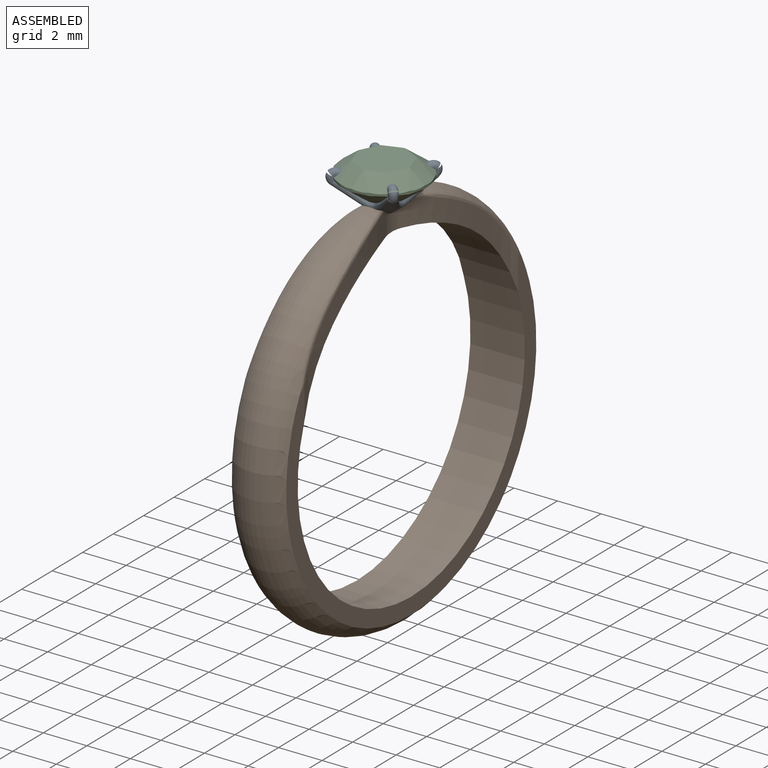
[diagram: assembled view]
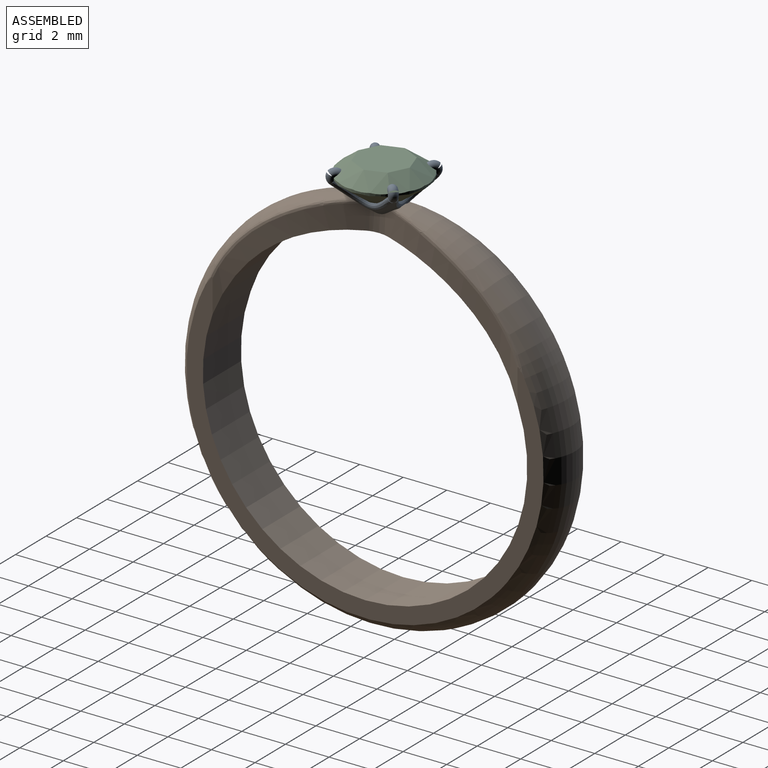
[diagram: assembled view, second angle]
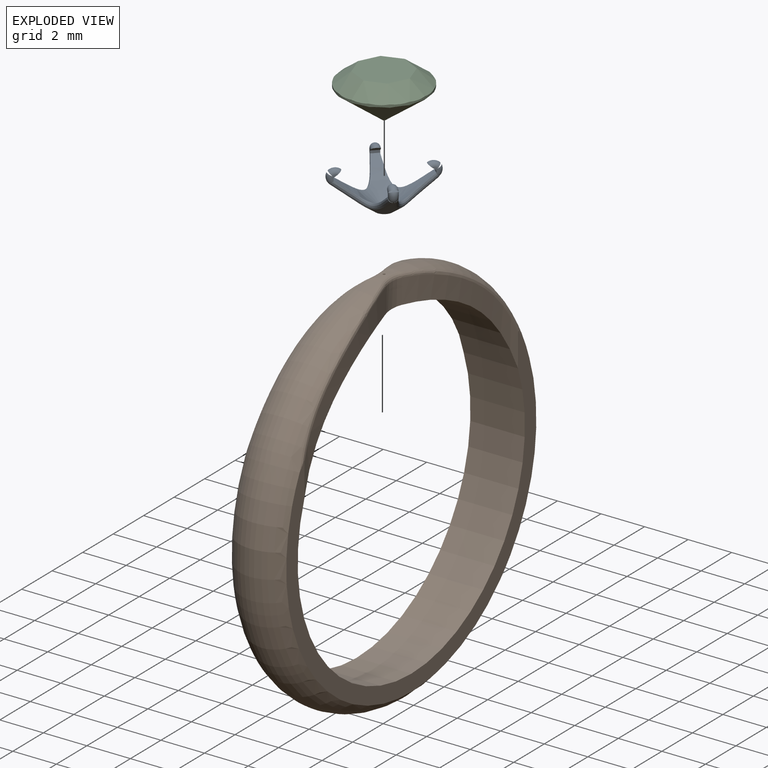
[diagram: exploded view]
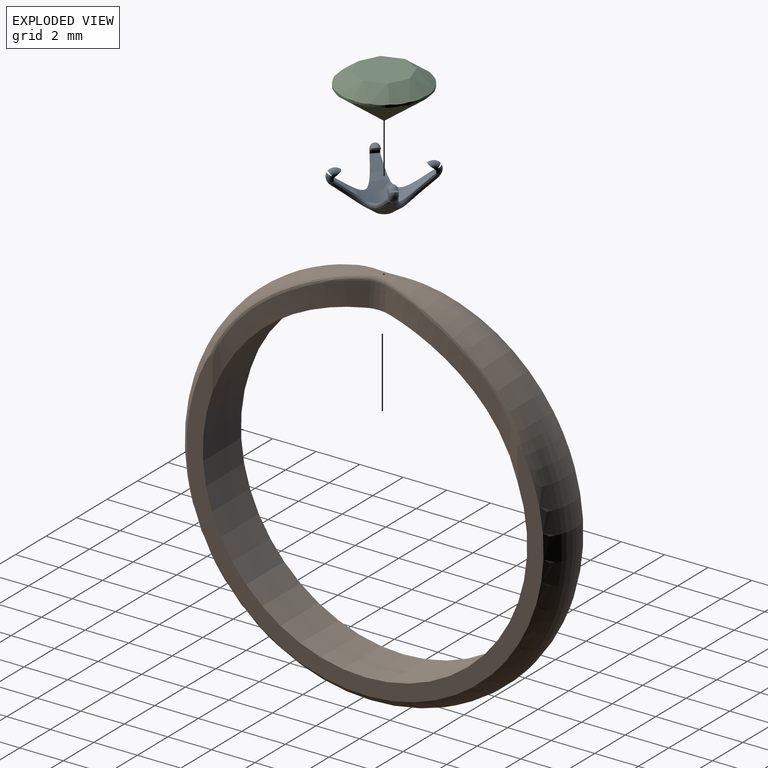
[diagram: exploded view, second angle]
ASSEMBLY  parts=3 mates=2
PART A: 104 faces, bbox 15.4x15.3x12.2 mm
  f0: cone r=1.96mm half-angle=36.5deg, axis (0,0,-1), area 0mm2, adj f8,f11,f72,f74,f98,f101
  f1: bspline ~6.14x6.13mm, area 0.1mm2, adj f7,f64,f101
  f2: bspline ~4.9x4.15mm, area 0mm2, adj f3,f10,f100
  f3: plane 0.04x0.03mm, normal (-0.44,-0.44,-0.78), area 0mm2, adj f2,f4,f10,f96
  f4: plane 0.27x0.22mm, normal (0,1,0), area 0mm2, adj f3,f9,f10,f47,f48,f49,f96
  f5: cone r=1.96mm half-angle=36.5deg, axis (0,0,-1), area 0mm2, adj f10,f63,f89,f92,f99,f101
  f6: cone r=1.96mm half-angle=36.5deg, axis (0,0,-1), area 0mm2, adj f9,f64
  f7: cone r=1.96mm half-angle=36.5deg, axis (0,0,-1), area 0mm2, adj f1,f13,f64
  f8: cone r=2.11mm half-angle=53.5deg, axis (0,0,1), area 0mm2, adj f0,f65,f74,f101
  f9: plane 0.21x0.02mm, normal (-0.59,0,0.8), area 0mm2, adj f4,f6,f48,f96
  f10: torus R=0.2mm, axis (0,-1,0), area 0.3mm2, adj f2,f3,f4,f5,f23,f50,f88,f100
  f11: torus R=0.2mm, axis (1,0,0), area 0.3mm2, adj f0,f12,f38,f39,f40,f58,f73,f97
  f12: plane 0.28x0.22mm, normal (1,0,0), area 0mm2, adj f11,f13,f55,f56,f57,f93,f94,f95
  f13: plane 0.2x0.01mm, normal (0,-0.59,0.8), area 0mm2, adj f7,f12,f56,f93,f94,f95
  f14: bspline ~6.76x6.75mm, area 0.1mm2, adj f20,f64,f92
  f15: bspline ~5.82x4.77mm, area 0mm2, adj f16,f22,f91
  f16: plane 0.04x0.03mm, normal (-0.44,0.44,-0.78), area 0mm2, adj f15,f17,f22,f87
  f17: plane 0.27x0.22mm, normal (1,0,0), area 0mm2, adj f16,f21,f22,f51,f52,f53,f87
  f18: cone r=1.96mm half-angle=36.5deg, axis (0,0,-1), area 0mm2, adj f22,f32,f80,f83,f90,f92
  f19: cone r=1.96mm half-angle=36.5deg, axis (0,0,-1), area 0mm2, adj f21,f64
  f20: cone r=1.96mm half-angle=36.5deg, axis (0,0,-1), area 0mm2, adj f14,f24,f64
  f21: plane 0.21x0.02mm, normal (0,0.59,0.8), area 0mm2, adj f17,f19,f52,f87
  f22: torus R=0.2mm, axis (-1,0,0), area 0.3mm2, adj f15,f16,f17,f18,f35,f54,f79,f91
  f23: plane 0.28x0.22mm, normal (0,-1,0), area 0mm2, adj f10,f24,f47,f48,f49,f84,f85,f86
  f24: plane 0.2x0.01mm, normal (-0.59,0,0.8), area 0mm2, adj f20,f23,f48,f84,f85,f86
  f25: bspline ~12.13x10.14mm, area 0.1mm2, adj f31,f64,f83
  f26: bspline ~11.15x8.43mm, area 0mm2, adj f27,f34,f82
  f27: plane 0.04x0.03mm, normal (0.44,0.44,-0.78), area 0mm2, adj f26,f28,f34,f78
  f28: plane 0.27x0.22mm, normal (0,-1,0), area 0mm2, adj f27,f33,f34,f59,f60,f61,f78
  f29: cone r=1.96mm half-angle=36.5deg, axis (0,0,-1), area 0mm2, adj f34,f41,f71,f74,f81,f83
  f30: cone r=1.96mm half-angle=36.5deg, axis (0,0,-1), area 0mm2, adj f33,f64
  f31: cone r=1.96mm half-angle=36.5deg, axis (0,0,-1), area 0mm2, adj f25,f36,f64
  f32: cone r=2.11mm half-angle=53.5deg, axis (0,0,1), area 0mm2, adj f18,f65,f83,f92
  f33: plane 0.21x0.02mm, normal (0.59,0,0.8), area 0mm2, adj f28,f30,f60,f78
  f34: torus R=0.2mm, axis (0,1,0), area 0.3mm2, adj f26,f27,f28,f29,f45,f62,f70,f82
  f35: plane 0.28x0.22mm, normal (-1,0,0), area 0mm2, adj f22,f36,f51,f52,f53,f75,f76,f77
  f36: plane 0.2x0.01mm, normal (0,0.59,0.8), area 0mm2, adj f31,f35,f52,f75,f76,f77
  f37: bspline ~6.64x6.63mm, area 0.1mm2, adj f43,f64,f74
  f38: bspline ~5.68x4.66mm, area 0mm2, adj f11,f39,f73
  f39: plane 0.04x0.03mm, normal (0.44,-0.44,-0.78), area 0mm2, adj f11,f38,f40,f69
  f40: plane 0.27x0.22mm, normal (-1,0,0), area 0mm2, adj f11,f39,f44,f55,f56,f57,f69
  f41: cone r=2.11mm half-angle=53.5deg, axis (0,0,1), area 0mm2, adj f29,f65,f74,f83
  f42: cone r=1.96mm half-angle=36.5deg, axis (0,0,-1), area 0mm2, adj f44,f64
  f43: cone r=1.96mm half-angle=36.5deg, axis (0,0,-1), area 0mm2, adj f37,f46,f64
  f44: plane 0.21x0.02mm, normal (0,-0.59,0.8), area 0mm2, adj f40,f42,f56,f69
  f45: plane 0.28x0.22mm, normal (0,1,0), area 0mm2, adj f34,f46,f59,f60,f61,f66,f67,f68
  f46: plane 0.2x0.01mm, normal (0.59,0,0.8), area 0mm2, adj f43,f45,f60,f66,f67,f68
  f47: plane 0.47x0.39mm, normal (-0.6,0,-0.8), area 0.1mm2, adj f4,f23,f48,f49
  f48: plane 0.4x0.12mm, normal (-1,0,0), area 0mm2, adj f4,f9,f23,f24,f47
  f49: torus R=0.2mm, axis (0,-1,0), area 0.3mm2, adj f4,f23,f47,f50
  f50: sphere r=0.2mm, area 0mm2, adj f10,f49
  f51: plane 0.47x0.39mm, normal (0,0.6,-0.8), area 0.1mm2, adj f17,f35,f52,f53
  f52: plane 0.4x0.12mm, normal (0,1,0), area 0mm2, adj f17,f21,f35,f36,f51
  f53: torus R=0.2mm, axis (-1,0,0), area 0.3mm2, adj f17,f35,f51,f54
  f54: sphere r=0.2mm, area 0mm2, adj f22,f53
  f55: plane 0.47x0.39mm, normal (0,-0.6,-0.8), area 0.1mm2, adj f12,f40,f56,f57
  f56: plane 0.4x0.12mm, normal (0,-1,0), area 0mm2, adj f12,f13,f40,f44,f55
  f57: torus R=0.2mm, axis (1,0,0), area 0.3mm2, adj f12,f40,f55,f58
  f58: sphere r=0.2mm, area 0mm2, adj f11,f57
  f59: plane 0.47x0.39mm, normal (0.6,0,-0.8), area 0.1mm2, adj f28,f45,f60,f61
  f60: plane 0.4x0.12mm, normal (1,0,0), area 0mm2, adj f28,f33,f45,f46,f59
  f61: torus R=0.2mm, axis (0,1,0), area 0.3mm2, adj f28,f45,f59,f62
  f62: sphere r=0.2mm, area 0mm2, adj f34,f61
  f63: cone r=2.11mm half-angle=53.5deg, axis (0,0,1), area 0mm2, adj f5,f65,f92,f101
  f64: cone r=0mm half-angle=53.5deg, axis (0,0,1), area 6.1mm2, adj f1,f6,f7,f14,f19,f20,f25,f30
  f65: cone r=2.07mm half-angle=53.7deg, axis (0,0,1), area 4.5mm2, adj f8,f32,f41,f63,f74,f83,f92,f101
  f66: bspline ~5.7x4.67mm, area 0mm2, adj f45,f46,f67,f70
  f67: plane 0.02x0.02mm, normal (0.44,-0.44,-0.78), area 0mm2, adj f45,f46,f66,f68
  f68: cone r=1.96mm half-angle=36.5deg, axis (0,0,-1), area 0mm2, adj f45,f46,f67
  f69: cone r=1.96mm half-angle=36.5deg, axis (0,0,-1), area 0mm2, adj f39,f40,f44
  f70: cone r=1.96mm half-angle=36.5deg, axis (0,0,-1), area 0mm2, adj f34,f45,f66,f71
  f71: bspline ~4.11x3.16mm, area 0mm2, adj f29,f70,f74
  f72: bspline ~4.16x3.34mm, area 0mm2, adj f0,f73,f74
  f73: cone r=1.96mm half-angle=36.5deg, axis (0,0,-1), area 0mm2, adj f11,f38,f72
  f74: bspline ~2.39x2.33mm, area 1.1mm2, adj f0,f8,f29,f37,f41,f65,f71,f72
  f75: bspline ~11.17x8.43mm, area 0mm2, adj f35,f36,f76,f79
  f76: plane 0.02x0.02mm, normal (0.44,0.44,-0.78), area 0mm2, adj f35,f36,f75,f77
  f77: cone r=1.96mm half-angle=36.5deg, axis (0,0,-1), area 0mm2, adj f35,f36,f76
  f78: cone r=1.96mm half-angle=36.5deg, axis (0,0,-1), area 0mm2, adj f27,f28,f33
  f79: cone r=1.96mm half-angle=36.5deg, axis (0,0,-1), area 0mm2, adj f22,f35,f75,f80
  f80: bspline ~4.11x3.16mm, area 0mm2, adj f18,f79,f83
  f81: bspline ~4.16x3.34mm, area 0mm2, adj f29,f82,f83
  f82: cone r=1.96mm half-angle=36.5deg, axis (0,0,-1), area 0mm2, adj f26,f34,f81
  f83: bspline ~2.08x2.07mm, area 1.1mm2, adj f18,f25,f29,f32,f41,f65,f80,f81
  f84: bspline ~5.84x4.78mm, area 0mm2, adj f23,f24,f85,f88
  f85: plane 0.02x0.02mm, normal (-0.44,0.44,-0.78), area 0mm2, adj f23,f24,f84,f86
  f86: cone r=1.96mm half-angle=36.5deg, axis (0,0,-1), area 0mm2, adj f23,f24,f85
  f87: cone r=1.96mm half-angle=36.5deg, axis (0,0,-1), area 0mm2, adj f16,f17,f21
  f88: cone r=1.96mm half-angle=36.5deg, axis (0,0,-1), area 0mm2, adj f10,f23,f84,f89
  f89: bspline ~4.11x3.16mm, area 0mm2, adj f5,f88,f92
  f90: bspline ~4.16x3.34mm, area 0mm2, adj f18,f91,f92
  f91: cone r=1.96mm half-angle=36.5deg, axis (0,0,-1), area 0mm2, adj f15,f22,f90
  f92: bspline ~2.39x2.32mm, area 1.1mm2, adj f5,f14,f18,f32,f63,f65,f89,f90
  f93: bspline ~4.93x4.17mm, area 0mm2, adj f12,f13,f94,f97
  f94: plane 0.02x0.02mm, normal (-0.44,-0.44,-0.78), area 0mm2, adj f12,f13,f93,f95
  f95: cone r=1.96mm half-angle=36.5deg, axis (0,0,-1), area 0mm2, adj f12,f13,f94
  f96: cone r=1.96mm half-angle=36.5deg, axis (0,0,-1), area 0mm2, adj f3,f4,f9
  f97: cone r=1.96mm half-angle=36.5deg, axis (0,0,-1), area 0mm2, adj f11,f12,f93,f98
  f98: bspline ~4.11x3.16mm, area 0mm2, adj f0,f97,f101
  f99: bspline ~4.16x3.34mm, area 0mm2, adj f5,f100,f101
  f100: cone r=1.96mm half-angle=36.5deg, axis (0,0,-1), area 0mm2, adj f2,f10,f99
  f101: bspline ~2.31x2.3mm, area 1.1mm2, adj f0,f1,f5,f8,f63,f65,f98,f99
  f102: cylinder r=0.05mm len=0.1mm, axis (0,0,-1), area 0mm2, adj f64,f103
  f103: plane 0.8x0.8mm, normal (0,0,-1), area 0.5mm2, adj f65,f102
PART B: 17 faces, bbox 19.3x19.3x3.1 mm
  f0: cylinder r=7.45mm len=14.9mm, axis (0,0,-1), area 105.5mm2, adj f1,f2,f4,f5,f6,f7,f8,f9
  f1: plane 16.62x12.52mm, normal (0,0,1), area 23.8mm2, adj f0,f3,f5,f7,f14,f16
  f2: plane 16.62x12.52mm, normal (0,0,-1), area 23.8mm2, adj f0,f3,f8,f10,f11,f13
  f3: torus R=7.19mm, axis (0,0,-1), area 135.5mm2, adj f1,f2,f4,f11,f12,f13,f14,f15
  f4: cylinder r=0.05mm len=1.35mm, axis (1,0,0), area 0.4mm2, adj f0,f3
  f5: extruded ~6.44x6.01mm, area 7.3mm2, adj f0,f1,f6,f15,f16
  f6: cylinder r=2mm len=1.13mm, axis (1,0,0), area 1.3mm2, adj f0,f5,f7,f15
  f7: extruded ~6.44x6.01mm, area 7.3mm2, adj f0,f1,f6,f14,f15
  f8: extruded ~6.44x6.01mm, area 7.3mm2, adj f0,f2,f9,f12,f13
  f9: cylinder r=2mm len=1.13mm, axis (1,0,0), area 1.3mm2, adj f0,f8,f10,f12
  f10: extruded ~6.44x6.01mm, area 7.3mm2, adj f0,f2,f9,f11,f12
  f11: bspline ~7.16x5.41mm, area 1.8mm2, adj f2,f3,f10,f12
  f12: bspline ~1.52x0.31mm, area 0.3mm2, adj f3,f8,f9,f10,f11,f13
  f13: bspline ~7.75x6.87mm, area 1.8mm2, adj f2,f3,f8,f12
  f14: bspline ~7.22x5.62mm, area 1.8mm2, adj f1,f3,f7,f15
  f15: bspline ~1.69x0.34mm, area 0.3mm2, adj f3,f5,f6,f7,f14,f16
  f16: bspline ~7.76x6.86mm, area 1.8mm2, adj f1,f3,f5,f15
PART C: 43 faces, bbox 3.9x3.9x2.1 mm
  f0: plane 1.71x1.44mm, normal (0.37,0.48,-0.8), area 0.9mm2, adj f1,f15,f16,f17
  f1: plane 1.9x1.43mm, normal (0.16,0.58,-0.8), area 0.9mm2, adj f0,f2,f16,f17
  f2: plane 1.9x1.43mm, normal (-0.08,0.6,-0.8), area 0.9mm2, adj f1,f3,f16,f17
  f3: plane 1.81x1.43mm, normal (-0.3,0.52,-0.8), area 0.9mm2, adj f2,f4,f16,f17
  f4: plane 1.71x1.44mm, normal (-0.48,0.37,-0.8), area 0.9mm2, adj f3,f5,f16,f17
  f5: plane 1.9x1.43mm, normal (-0.58,0.16,-0.8), area 0.9mm2, adj f4,f6,f16,f17
  f6: plane 1.9x1.43mm, normal (-0.6,-0.08,-0.8), area 0.9mm2, adj f5,f7,f16,f17
  f7: plane 1.81x1.43mm, normal (-0.52,-0.3,-0.8), area 0.9mm2, adj f6,f8,f16,f17
  f8: plane 1.71x1.44mm, normal (-0.37,-0.48,-0.8), area 0.9mm2, adj f7,f9,f16,f17
  f9: plane 1.9x1.43mm, normal (-0.16,-0.58,-0.8), area 0.9mm2, adj f8,f10,f16,f17
  f10: plane 1.9x1.43mm, normal (0.08,-0.6,-0.8), area 0.9mm2, adj f9,f11,f16,f17
  f11: plane 1.81x1.43mm, normal (0.3,-0.52,-0.8), area 0.9mm2, adj f10,f12,f16,f17
  f12: plane 1.71x1.44mm, normal (0.48,-0.37,-0.8), area 0.9mm2, adj f11,f13,f16,f17
  f13: plane 1.9x1.43mm, normal (0.58,-0.16,-0.8), area 0.9mm2, adj f12,f14,f16,f17
  f14: plane 1.9x1.43mm, normal (0.6,0.08,-0.8), area 0.9mm2, adj f13,f15,f16,f17
  f15: plane 1.81x1.43mm, normal (0.52,0.3,-0.8), area 0.9mm2, adj f0,f14,f16,f17
  f16: plane 0.13x0.13mm, normal (0,0,-1), area 0mm2, adj f0,f1,f2,f3,f4,f5,f6,f7
  f17: cylinder r=1.96mm len=3.92mm, axis (0,0,1), area 1.3mm2, adj f0,f1,f2,f3,f4,f5,f6,f7
  f18: plane 2.47x2.47mm, normal (0,0,1), area 4.3mm2, adj f19,f22,f25,f28,f31,f34,f37,f40
  f19: plane 0.93x0.9mm, normal (0.52,0.18,0.84), area 0.5mm2, adj f17,f18,f20,f21
  f20: plane 0.92x0.64mm, normal (0.52,0.3,0.8), area 0.4mm2, adj f17,f19,f42
  f21: plane 0.74x0.72mm, normal (0.6,0.08,0.8), area 0.4mm2, adj f17,f19,f23
  f22: plane 0.95x0.85mm, normal (0.49,-0.24,0.84), area 0.5mm2, adj f17,f18,f23,f24
  f23: plane 0.77x0.72mm, normal (0.58,-0.16,0.8), area 0.4mm2, adj f17,f21,f22
  f24: plane 0.93x0.59mm, normal (0.48,-0.37,0.8), area 0.4mm2, adj f17,f22,f26
  f25: plane 0.93x0.9mm, normal (0.18,-0.52,0.84), area 0.5mm2, adj f17,f18,f26,f27
  f26: plane 0.92x0.64mm, normal (0.3,-0.52,0.8), area 0.4mm2, adj f17,f24,f25
  f27: plane 0.74x0.72mm, normal (0.08,-0.6,0.8), area 0.4mm2, adj f17,f25,f29
  f28: plane 0.95x0.85mm, normal (-0.24,-0.49,0.84), area 0.5mm2, adj f17,f18,f29,f30
  f29: plane 0.77x0.72mm, normal (-0.16,-0.58,0.8), area 0.4mm2, adj f17,f27,f28
  f30: plane 0.93x0.59mm, normal (-0.37,-0.48,0.8), area 0.4mm2, adj f17,f28,f32
  f31: plane 0.93x0.9mm, normal (-0.52,-0.18,0.84), area 0.5mm2, adj f17,f18,f32,f33
  f32: plane 0.92x0.64mm, normal (-0.52,-0.3,0.8), area 0.4mm2, adj f17,f30,f31
  f33: plane 0.74x0.72mm, normal (-0.6,-0.08,0.8), area 0.4mm2, adj f17,f31,f35
  f34: plane 0.95x0.85mm, normal (-0.49,0.24,0.84), area 0.5mm2, adj f17,f18,f35,f36
  f35: plane 0.77x0.72mm, normal (-0.58,0.16,0.8), area 0.4mm2, adj f17,f33,f34
  f36: plane 0.93x0.59mm, normal (-0.48,0.37,0.8), area 0.4mm2, adj f17,f34,f38
  f37: plane 0.93x0.9mm, normal (-0.18,0.52,0.84), area 0.5mm2, adj f17,f18,f38,f39
  f38: plane 0.92x0.64mm, normal (-0.3,0.52,0.8), area 0.4mm2, adj f17,f36,f37
  f39: plane 0.74x0.72mm, normal (-0.08,0.6,0.8), area 0.4mm2, adj f17,f37,f41
  f40: plane 0.95x0.85mm, normal (0.24,0.49,0.84), area 0.5mm2, adj f17,f18,f41,f42
  f41: plane 0.77x0.72mm, normal (0.16,0.58,0.8), area 0.4mm2, adj f17,f39,f40
  f42: plane 0.93x0.59mm, normal (0.37,0.48,0.8), area 0.4mm2, adj f17,f20,f40
PLACE A rot(axis=(0,0,1),45deg) t=(-10.78,-4.82,1.83)mm
PLACE B rot(axis=(0,-1,0),90deg) t=(-9.53,-4.82,-6.45)mm
PLACE C rot(axis=(0,0,1),45deg) t=(-10.78,-4.82,3.3)mm
MATE fastened A.f0 <-> C.f17  axis (0,0,-1) through (-10.78,-4.82,1.87)mm
MATE cylindrical B.f4 <-> A.f0  axis (0,0,1) through (-10.78,-4.82,2.36)mm
